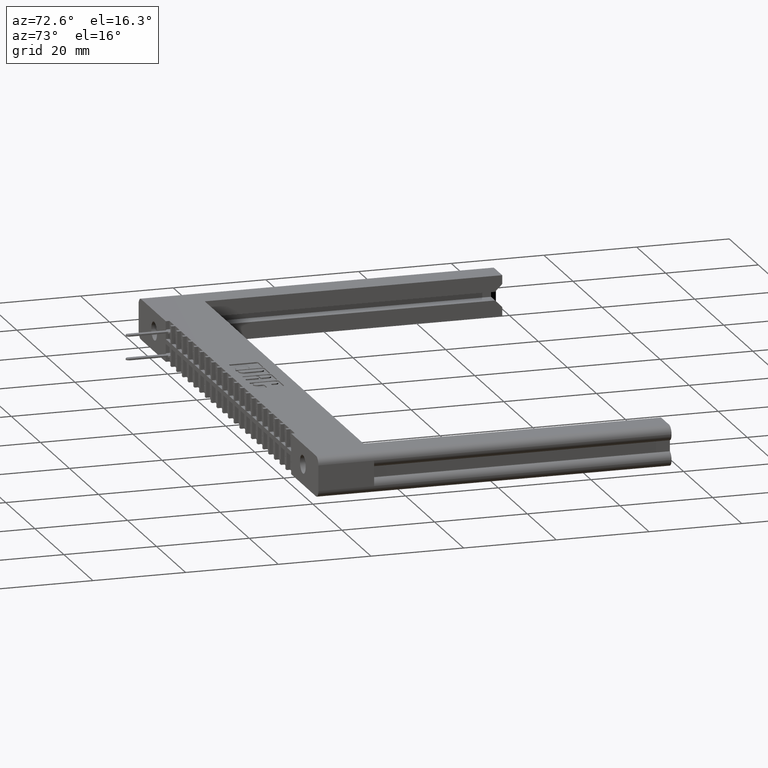
[diagram: clean part render]
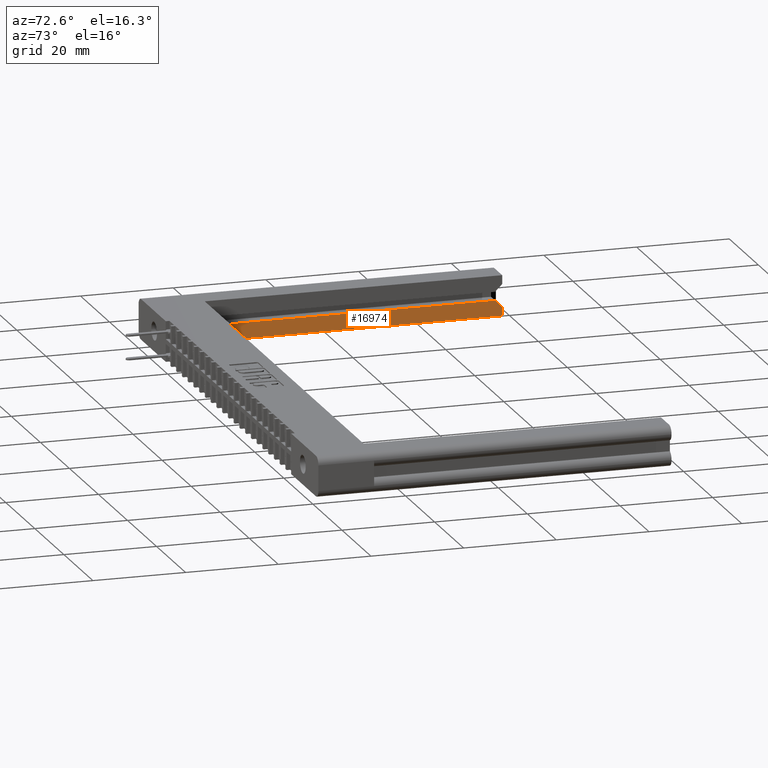
[diagram: same view with one face highlighted and labeled with its STEP entity id]
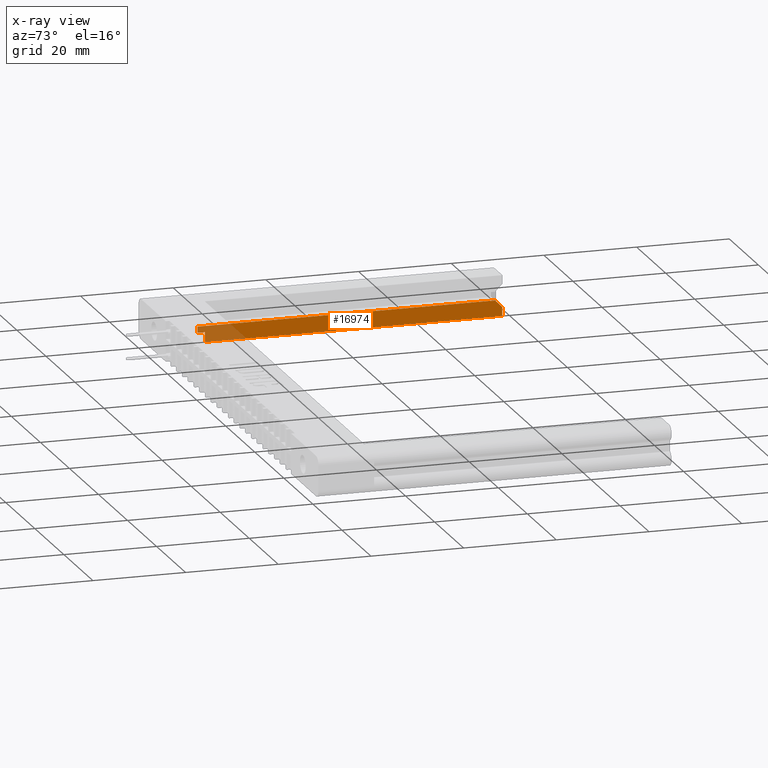
[diagram: x-ray of the same camera — body ghosted, the highlighted face saturated]
A machine part, auxiliary view. The second image highlights one B-rep face of the part: STEP entity #16974.
The next image is the same camera in x-ray: the body ghosted, the highlighted face saturated — about 12% of this face is hidden behind the body in this view.
In plain terms, the highlighted planar face has unit normal (-1, 0, 0).
Its self-contained STEP definition (entity closure, byte-faithful):
#1173 = ORIENTED_EDGE ( 'NONE', *, *, #11212, .F. ) ;
#1203 = LINE ( 'NONE', #11515, #9880 ) ;
#1778 = DIRECTION ( 'NONE',  ( 0.0000000000000000000, -1.000000000000000000, 0.0000000000000000000 ) ) ;
#2110 = LINE ( 'NONE', #6284, #18971 ) ;
#2736 = EDGE_CURVE ( 'NONE', #14414, #5024, #9703, .T. ) ;
#2967 = DIRECTION ( 'NONE',  ( 0.0000000000000000000, 1.000000000000000000, 0.0000000000000000000 ) ) ;
#4312 = CARTESIAN_POINT ( 'NONE',  ( 0.2844999999999999200, 3.000000000000000400, -0.1715000000000000100 ) ) ;
#4517 = EDGE_CURVE ( 'NONE', #6063, #5650, #8544, .T. ) ;
#4590 = DIRECTION ( 'NONE',  ( -0.0000000000000000000, -0.0000000000000000000, -1.000000000000000000 ) ) ;
#4859 = VERTEX_POINT ( 'NONE', #21015 ) ;
#4949 = LINE ( 'NONE', #17660, #9507 ) ;
#5024 = VERTEX_POINT ( 'NONE', #8204 ) ;
#5483 = LINE ( 'NONE', #21191, #13979 ) ;
#5650 = VERTEX_POINT ( 'NONE', #21286 ) ;
#5844 = CARTESIAN_POINT ( 'NONE',  ( 0.2844999999999999200, 0.4729999999999995900, -0.08999999999999994100 ) ) ;
#5912 = DIRECTION ( 'NONE',  ( 0.0000000000000000000, 0.0000000000000000000, 1.000000000000000000 ) ) ;
#6063 = VERTEX_POINT ( 'NONE', #5844 ) ;
#6200 = EDGE_CURVE ( 'NONE', #4859, #14414, #5483, .T. ) ;
#6210 = DIRECTION ( 'NONE',  ( 0.0000000000000000000, -0.7071067811865507900, 0.7071067811865441300 ) ) ;
#6284 = CARTESIAN_POINT ( 'NONE',  ( 0.2844999999999999200, 3.000000000000000400, 0.1715000000000000100 ) ) ;
#6803 = CARTESIAN_POINT ( 'NONE',  ( 0.2844999999999999200, 0.4729999999999994200, 0.1715000000000000100 ) ) ;
#8081 = VECTOR ( 'NONE', #12956, 39.37007874015748100 ) ;
#8204 = CARTESIAN_POINT ( 'NONE',  ( 0.2844999999999999200, 0.4109999999999994800, -0.03699999999999999800 ) ) ;
#8500 = ORIENTED_EDGE ( 'NONE', *, *, #6200, .T. ) ;
#8544 = LINE ( 'NONE', #10248, #20986 ) ;
#8546 = DIRECTION ( 'NONE',  ( 0.0000000000000000000, 0.0000000000000000000, 1.000000000000000000 ) ) ;
#8641 = LINE ( 'NONE', #11245, #8081 ) ;
#8671 = CARTESIAN_POINT ( 'NONE',  ( 0.2844999999999999200, 2.940000000000000400, -0.03699999999999999800 ) ) ;
#8929 = EDGE_CURVE ( 'NONE', #5650, #17878, #1203, .T. ) ;
#9227 = FACE_OUTER_BOUND ( 'NONE', #11874, .T. ) ;
#9507 = VECTOR ( 'NONE', #5912, 39.37007874015748100 ) ;
#9703 = LINE ( 'NONE', #20249, #15196 ) ;
#9803 = AXIS2_PLACEMENT_3D ( 'NONE', #6803, #18494, #8546 ) ;
#9831 = ORIENTED_EDGE ( 'NONE', *, *, #11936, .F. ) ;
#9880 = VECTOR ( 'NONE', #2967, 39.37007874015748100 ) ;
#10248 = CARTESIAN_POINT ( 'NONE',  ( 0.2844999999999999200, 0.4729999999999994200, 0.1715000000000000100 ) ) ;
#11212 = EDGE_CURVE ( 'NONE', #6063, #11410, #8641, .T. ) ;
#11245 = CARTESIAN_POINT ( 'NONE',  ( 0.2844999999999999200, 3.000000000000000400, -0.08999999999999994100 ) ) ;
#11410 = VERTEX_POINT ( 'NONE', #18291 ) ;
#11439 = ORIENTED_EDGE ( 'NONE', *, *, #4517, .T. ) ;
#11515 = CARTESIAN_POINT ( 'NONE',  ( 0.2844999999999999200, 0.4729999999999994200, -0.1715000000000000100 ) ) ;
#11709 = ORIENTED_EDGE ( 'NONE', *, *, #2736, .T. ) ;
#11874 = EDGE_LOOP ( 'NONE', ( #9831, #8500, #11709, #12761, #1173, #11439, #21185 ) ) ;
#11936 = EDGE_CURVE ( 'NONE', #4859, #17878, #2110, .T. ) ;
#12761 = ORIENTED_EDGE ( 'NONE', *, *, #16767, .F. ) ;
#12956 = DIRECTION ( 'NONE',  ( 0.0000000000000000000, -1.000000000000000000, 0.0000000000000000000 ) ) ;
#13979 = VECTOR ( 'NONE', #6210, 39.37007874015748900 ) ;
#14414 = VERTEX_POINT ( 'NONE', #8671 ) ;
#15196 = VECTOR ( 'NONE', #1778, 39.37007874015748100 ) ;
#16767 = EDGE_CURVE ( 'NONE', #11410, #5024, #4949, .T. ) ;
#16878 = PLANE ( 'NONE',  #9803 ) ;
#16974 = ADVANCED_FACE ( 'NONE', ( #9227 ), #16878, .F. ) ;
#17660 = CARTESIAN_POINT ( 'NONE',  ( 0.2844999999999999200, 0.4109999999999994800, -0.08999999999999994100 ) ) ;
#17878 = VERTEX_POINT ( 'NONE', #4312 ) ;
#18291 = CARTESIAN_POINT ( 'NONE',  ( 0.2844999999999999200, 0.4109999999999994800, -0.08999999999999994100 ) ) ;
#18494 = DIRECTION ( 'NONE',  ( -1.000000000000000000, 0.0000000000000000000, 0.0000000000000000000 ) ) ;
#18971 = VECTOR ( 'NONE', #4590, 39.37007874015748100 ) ;
#20185 = DIRECTION ( 'NONE',  ( -0.0000000000000000000, -0.0000000000000000000, -1.000000000000000000 ) ) ;
#20249 = CARTESIAN_POINT ( 'NONE',  ( 0.2844999999999999200, 3.000000000000000400, -0.03699999999999999800 ) ) ;
#20986 = VECTOR ( 'NONE', #20185, 39.37007874015748100 ) ;
#21015 = CARTESIAN_POINT ( 'NONE',  ( 0.2844999999999999200, 3.000000000000000400, -0.09699999999999932300 ) ) ;
#21185 = ORIENTED_EDGE ( 'NONE', *, *, #8929, .T. ) ;
#21191 = CARTESIAN_POINT ( 'NONE',  ( 0.2844999999999999200, 2.940000000000000400, -0.03699999999999999800 ) ) ;
#21286 = CARTESIAN_POINT ( 'NONE',  ( 0.2844999999999999200, 0.4729999999999994200, -0.1715000000000000100 ) ) ;